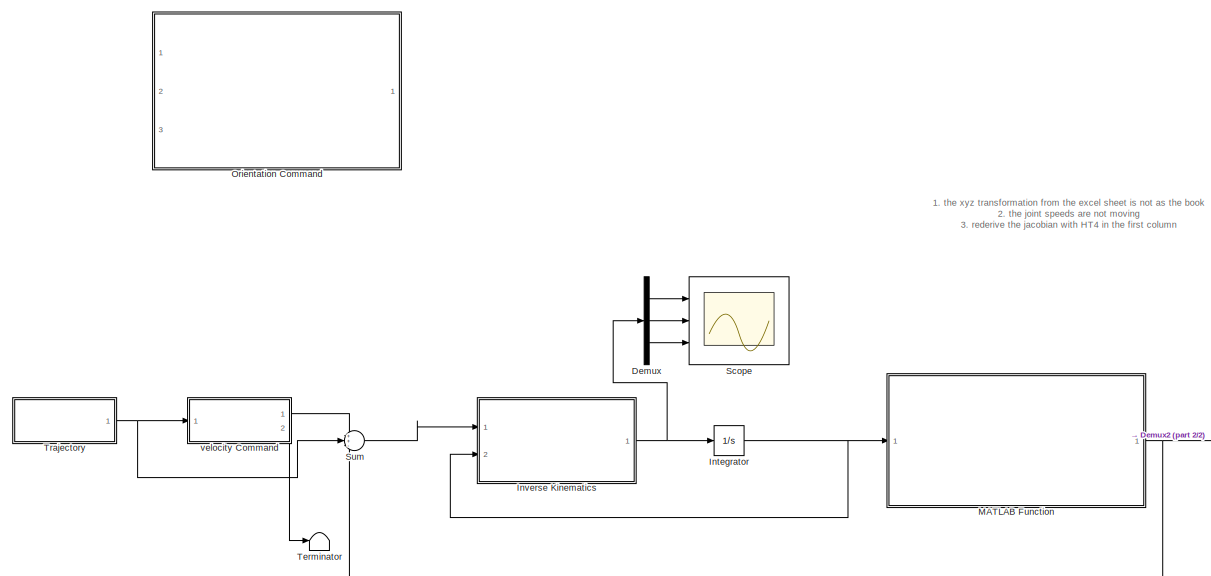
[diagram: root canvas - part 1/2, left side, full height]
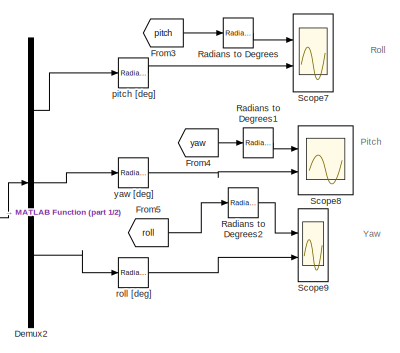
[diagram: root canvas - part 2/2, middle right region]
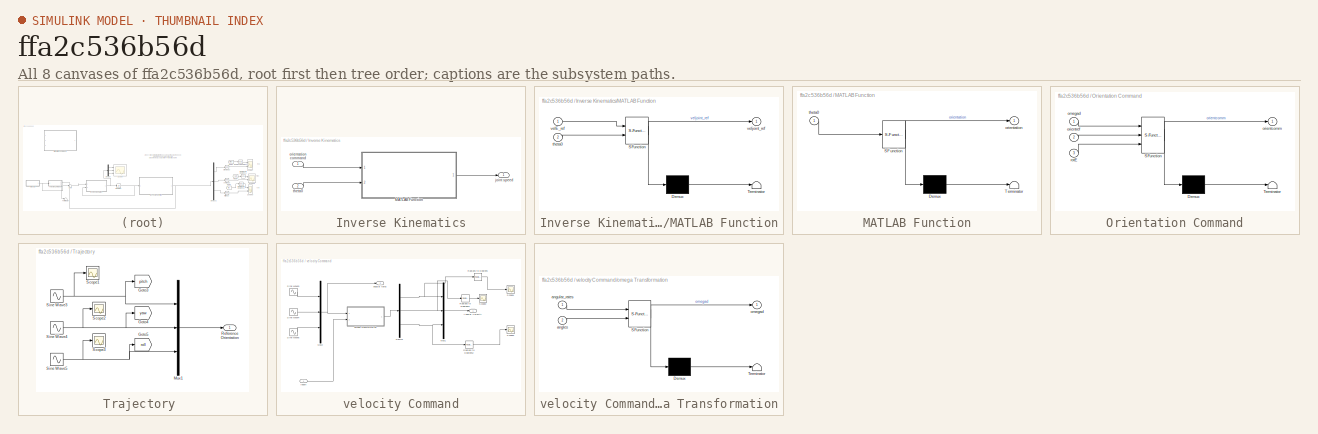
[diagram: thumbnail index - all 8 canvases of the model, root first then tree order]
MODEL slx_ffa2c536b56d
KIND model
CONFIG AbsTol = auto
CONFIG EnableMultiTasking = off
CONFIG FixedStep = auto
CONFIG MaxStep = auto
CONFIG MinStep = auto
CONFIG RelTol = 1e-3
CONFIG SampleTimeConstraint = Unconstrained
CONFIG Solver = VariableStepAuto
CONFIG SolverName = VariableStepAuto
CONFIG StartTime = 0.0
CONFIG StopTime = 10.0
BLOCK [Demux] Demux
  DisplayOption = bar
  Outputs = 3
  Ports = [1, 3]
BLOCK [Demux] Demux2
  DisplayOption = bar
  Outputs = 3
  Ports = [1, 3]
BLOCK [From] From3
  GotoTag = pitch
  TagVisibility = global
BLOCK [From] From4
  GotoTag = yaw
  TagVisibility = global
BLOCK [From] From5
  GotoTag = roll
  TagVisibility = global
BLOCK [Integrator] Integrator
  InitialCondition = [20 20 20]*pi/180
  Ports = [1, 1]
BLOCK [SubSystem] Inverse Kinematics
  Ports = [2, 1]
  RequestExecContextInheritance = off
BLOCK [SubSystem] Inverse Kinematics/MATLAB Function
  ErrorFcn = Stateflow.Translate.translate
  PermitHierarchicalResolution = ExplicitOnly
  Ports = [2, 1]
  RequestExecContextInheritance = off
  SFBlockType = MATLAB Function
  TreatAsAtomicUnit = on
BLOCK [Demux] Inverse Kinematics/MATLAB Function/ Demux 
  Outputs = 1
  Ports = [1, 1]
BLOCK [S-Function] Inverse Kinematics/MATLAB Function/ SFunction 
  EnableBusSupport = on
  FunctionName = sf_sfun
  PortCounts = [2 2]
  Ports = [2, 2]
  SFcnIsStateOwnerBlock = off
  SFunctionDeploymentMode = off
  Tag = Stateflow S-Function 2
BLOCK [Terminator] Inverse Kinematics/MATLAB Function/ Terminator 
BLOCK [Inport] Inverse Kinematics/MATLAB Function/theta0
  IconDisplay = Port number
  Port = 2
BLOCK [Inport] Inverse Kinematics/MATLAB Function/velE_ref
  IconDisplay = Port number
BLOCK [Outport] Inverse Kinematics/MATLAB Function/veljoint_ref
  IconDisplay = Port number
  VectorParamsAs1DForOutWhenUnconnected = off
BLOCK [Outport] Inverse Kinematics/joint speed
  IconDisplay = Port number
  VectorParamsAs1DForOutWhenUnconnected = off
BLOCK [Inport] Inverse Kinematics/orientation command
  IconDisplay = Port number
BLOCK [Inport] Inverse Kinematics/theta0
  IconDisplay = Port number
  Port = 2
BLOCK [SubSystem] MATLAB Function
  ErrorFcn = Stateflow.Translate.translate
  PermitHierarchicalResolution = ExplicitOnly
  Ports = [1, 1]
  RequestExecContextInheritance = off
  SFBlockType = MATLAB Function
  TreatAsAtomicUnit = on
BLOCK [Demux] MATLAB Function/ Demux 
  Outputs = 1
  Ports = [1, 1]
BLOCK [S-Function] MATLAB Function/ SFunction 
  EnableBusSupport = on
  FunctionName = sf_sfun
  PortCounts = [1 2]
  Ports = [1, 2]
  SFcnIsStateOwnerBlock = off
  SFunctionDeploymentMode = off
  Tag = Stateflow S-Function 1
BLOCK [Terminator] MATLAB Function/ Terminator 
BLOCK [Outport] MATLAB Function/orientation
  IconDisplay = Port number
BLOCK [Inport] MATLAB Function/theta0
  IconDisplay = Port number
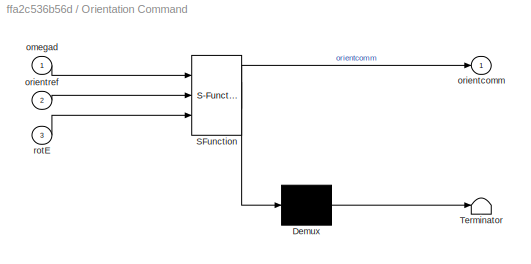
BLOCK [SubSystem] Orientation Command
  Commented = on
  ErrorFcn = Stateflow.Translate.translate
  PermitHierarchicalResolution = ExplicitOnly
  Ports = [3, 1]
  RequestExecContextInheritance = off
  SFBlockType = MATLAB Function
  TreatAsAtomicUnit = on
BLOCK [Demux] Orientation Command/ Demux 
  Outputs = 1
  Ports = [1, 1]
BLOCK [S-Function] Orientation Command/ SFunction 
  EnableBusSupport = on
  FunctionName = sf_sfun
  PortCounts = [3 2]
  Ports = [3, 2]
  SFcnIsStateOwnerBlock = off
  SFunctionDeploymentMode = off
  Tag = Stateflow S-Function 3
BLOCK [Terminator] Orientation Command/ Terminator 
BLOCK [Inport] Orientation Command/omegad
  IconDisplay = Port number
BLOCK [Outport] Orientation Command/orientcomm
  IconDisplay = Port number
BLOCK [Inport] Orientation Command/orientref
  IconDisplay = Port number
  Port = 2
BLOCK [Inport] Orientation Command/rotE
  IconDisplay = Port number
  Port = 3
BLOCK [Reference] Radians to Degrees  REF=simulink_extras/Transformations/Radians
to Degrees
  Ports = [1, 1]
  SourceBlock = simulink_extras/Transformations/Radians\nto Degrees
  SourceProductBaseCode = SL
  SourceProductName = Simulink
  SourceType = RadiansToDegrees
BLOCK [Reference] Radians to Degrees1  REF=simulink_extras/Transformations/Radians
to Degrees
  Ports = [1, 1]
  SourceBlock = simulink_extras/Transformations/Radians\nto Degrees
  SourceProductBaseCode = SL
  SourceProductName = Simulink
  SourceType = RadiansToDegrees
BLOCK [Reference] Radians to Degrees2  REF=simulink_extras/Transformations/Radians
to Degrees
  Ports = [1, 1]
  SourceBlock = simulink_extras/Transformations/Radians\nto Degrees
  SourceProductBaseCode = SL
  SourceProductName = Simulink
  SourceType = RadiansToDegrees
BLOCK [Scope] Scope
  Floating = off
  NumInputPorts = 3
  Ports = [3]
  ScopeSpecificationString = Simulink.scopes.TimeScopeBlockCfg('CurrentConfiguration', extmgr.ConfigurationSet(extmgr.Configuration('Core','General UI',true),extmgr.Configuration('Core','Source UI',true),extmgr.Configuration('Sources','WiredSimulink',true,'DataLoggingVariableName','ScopeData9'),extmgr.Configuration('Visuals','Time Domain',true,'SerializedDisplays',{struct('MinYLimReal','-9634.93138','MaxYLimReal','12496.24103...<+1456ch>
BLOCK [Scope] Scope7
  Floating = off
  NumInputPorts = 2
  Ports = [2]
  ScopeSpecificationString = Simulink.scopes.TimeScopeBlockCfg('CurrentConfiguration', extmgr.ConfigurationSet(extmgr.Configuration('Core','General UI',true),extmgr.Configuration('Core','Source UI',true),extmgr.Configuration('Sources','WiredSimulink',true,'DataLoggingVariableName','ScopeData6'),extmgr.Configuration('Visuals','Time Domain',true,'SerializedDisplays',{struct('MinYLimReal','-215.92752','MaxYLimReal','210.72616','...<+1446ch>
BLOCK [Scope] Scope8
  Floating = off
  NumInputPorts = 2
  Ports = [2]
  ScopeSpecificationString = Simulink.scopes.TimeScopeBlockCfg('CurrentConfiguration', extmgr.ConfigurationSet(extmgr.Configuration('Core','General UI',true),extmgr.Configuration('Core','Source UI',true),extmgr.Configuration('Sources','WiredSimulink',true,'DataLoggingVariableName','ScopeData7'),extmgr.Configuration('Visuals','Time Domain',true,'SerializedDisplays',{struct('MinYLimReal','29.35582','MaxYLimReal','85.79763','YLa...<+1438ch>
BLOCK [Scope] Scope9
  Floating = off
  NumInputPorts = 2
  Ports = [2]
  ScopeSpecificationString = Simulink.scopes.TimeScopeBlockCfg('CurrentConfiguration', extmgr.ConfigurationSet(extmgr.Configuration('Core','General UI',true),extmgr.Configuration('Core','Source UI',true),extmgr.Configuration('Sources','WiredSimulink',true,'DataLoggingVariableName','ScopeData8'),extmgr.Configuration('Visuals','Time Domain',true,'SerializedDisplays',{struct('MinYLimReal','28.34422','MaxYLimReal','94.90199','YLa...<+1470ch>
BLOCK [Sum] Sum
  IconShape = round
  InputSameDT = off
  Inputs = ++-
  OutDataTypeStr = Inherit: Inherit via internal rule
  Ports = [3, 1]
  SaturateOnIntegerOverflow = off
BLOCK [Terminator] Terminator
BLOCK [SubSystem] Trajectory 
  Ports = [0, 1]
  RequestExecContextInheritance = off
BLOCK [Goto] Trajectory /Goto3
  GotoTag = pitch
  TagVisibility = global
BLOCK [Goto] Trajectory /Goto4
  GotoTag = yaw
  TagVisibility = global
BLOCK [Goto] Trajectory /Goto5
  GotoTag = roll
  TagVisibility = global
BLOCK [Mux] Trajectory /Mux1
  DisplayOption = bar
  Inputs = 3
  Ports = [3, 1]
BLOCK [Outport] Trajectory /Reference Orientation
  IconDisplay = Port number
BLOCK [Scope] Trajectory /Scope1
  Floating = off
  NumInputPorts = 1
  Ports = [1]
  ScopeSpecificationString = Simulink.scopes.TimeScopeBlockCfg('CurrentConfiguration', extmgr.ConfigurationSet(extmgr.Configuration('Core','General UI',true),extmgr.Configuration('Core','Source UI',true),extmgr.Configuration('Sources','WiredSimulink',true,'DataLoggingVariableName','ScopeData4'),extmgr.Configuration('Visuals','Time Domain',true,'SerializedDisplays',{struct('MinYLimReal','0.59996','MaxYLimReal','0.70904','YLabe...<+1419ch>
BLOCK [Scope] Trajectory /Scope2
  Floating = off
  NumInputPorts = 1
  Ports = [1]
  ScopeSpecificationString = Simulink.scopes.TimeScopeBlockCfg('CurrentConfiguration', extmgr.ConfigurationSet(extmgr.Configuration('Core','General UI',true),extmgr.Configuration('Core','Source UI',true),extmgr.Configuration('Sources','WiredSimulink',true,'DataLoggingVariableName','ScopeData1'),extmgr.Configuration('Visuals','Time Domain',true,'SerializedDisplays',{struct('MinYLimReal','-1.23169','MaxYLimReal','-1.12366','YLa...<+1423ch>
BLOCK [Scope] Trajectory /Scope3
  Floating = off
  NumInputPorts = 1
  Ports = [1]
  ScopeSpecificationString = Simulink.scopes.TimeScopeBlockCfg('CurrentConfiguration', extmgr.ConfigurationSet(extmgr.Configuration('Core','General UI',true),extmgr.Configuration('Core','Source UI',true),extmgr.Configuration('Sources','WiredSimulink',true,'DataLoggingVariableName','ScopeData2'),extmgr.Configuration('Visuals','Time Domain',true,'SerializedDisplays',{struct('MinYLimReal','-1.63396','MaxYLimReal','-1.52593','YLa...<+1423ch>
BLOCK [Sin] Trajectory /Sine Wave3
  Amplitude = 5*pi/180
  Bias = 20*pi/180
  Frequency = 2*pi/100/4
  Ports = [0, 1]
  SampleTime = 0
BLOCK [Sin] Trajectory /Sine Wave4
  Amplitude = 5*pi/180
  Bias = 20*pi/180
  Frequency = 2*pi/100/4
  Ports = [0, 1]
  SampleTime = 0
BLOCK [Sin] Trajectory /Sine Wave5
  Amplitude = 5*pi/180
  Bias = 20*pi/180
  Frequency = 2*pi/100/4
  Ports = [0, 1]
  SampleTime = 0
BLOCK [Reference] pitch [deg]  REF=simulink_extras/Transformations/Radians
to Degrees
  Ports = [1, 1]
  SourceBlock = simulink_extras/Transformations/Radians\nto Degrees
  SourceProductBaseCode = SL
  SourceProductName = Simulink
  SourceType = RadiansToDegrees
BLOCK [Reference] roll [deg]  REF=simulink_extras/Transformations/Radians
to Degrees
  Ports = [1, 1]
  SourceBlock = simulink_extras/Transformations/Radians\nto Degrees
  SourceProductBaseCode = SL
  SourceProductName = Simulink
  SourceType = RadiansToDegrees
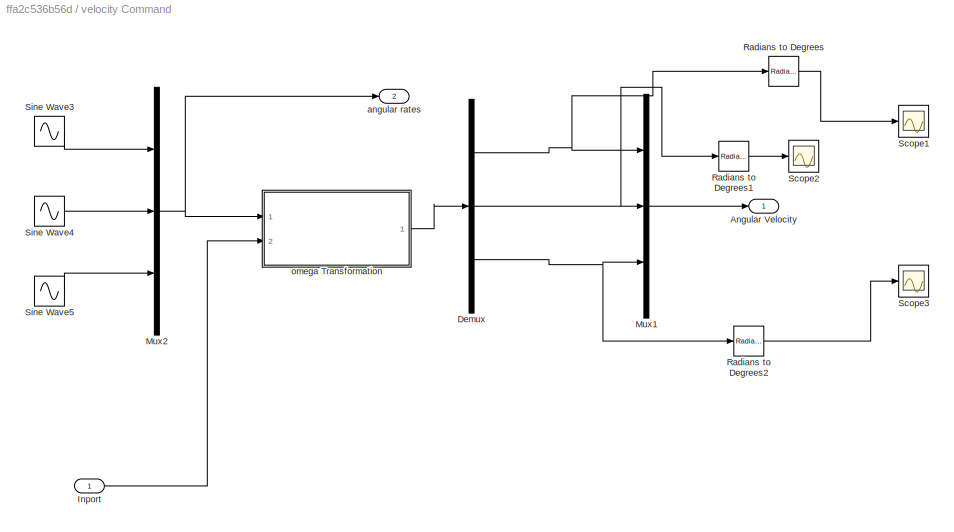
BLOCK [SubSystem] velocity Command
  Ports = [1, 2]
  RequestExecContextInheritance = off
BLOCK [Outport] velocity Command/Angular Velocity
  IconDisplay = Port number
BLOCK [Demux] velocity Command/Demux
  DisplayOption = bar
  Outputs = 3
  Ports = [1, 3]
BLOCK [Inport] velocity Command/Inport
  IconDisplay = Port number
BLOCK [Mux] velocity Command/Mux1
  DisplayOption = bar
  Inputs = 3
  Ports = [3, 1]
BLOCK [Mux] velocity Command/Mux2
  DisplayOption = bar
  Inputs = 3
  Ports = [3, 1]
BLOCK [Reference] velocity Command/Radians to Degrees  REF=simulink_extras/Transformations/Radians
to Degrees
  Ports = [1, 1]
  SourceBlock = simulink_extras/Transformations/Radians\nto Degrees
  SourceProductBaseCode = SL
  SourceProductName = Simulink
  SourceType = RadiansToDegrees
BLOCK [Reference] velocity Command/Radians to Degrees1  REF=simulink_extras/Transformations/Radians
to Degrees
  Ports = [1, 1]
  SourceBlock = simulink_extras/Transformations/Radians\nto Degrees
  SourceProductBaseCode = SL
  SourceProductName = Simulink
  SourceType = RadiansToDegrees
BLOCK [Reference] velocity Command/Radians to Degrees2  REF=simulink_extras/Transformations/Radians
to Degrees
  Ports = [1, 1]
  SourceBlock = simulink_extras/Transformations/Radians\nto Degrees
  SourceProductBaseCode = SL
  SourceProductName = Simulink
  SourceType = RadiansToDegrees
BLOCK [Scope] velocity Command/Scope1
  Floating = off
  NumInputPorts = 1
  Ports = [1]
  ScopeSpecificationString = Simulink.scopes.TimeScopeBlockCfg('CurrentConfiguration', extmgr.ConfigurationSet(extmgr.Configuration('Core','General UI',true),extmgr.Configuration('Core','Source UI',true),extmgr.Configuration('Sources','WiredSimulink',true,'DataLoggingVariableName','ScopeData1'),extmgr.Configuration('Visuals','Time Domain',true,'SerializedDisplays',{struct('MinYLimReal','-0.67472','MaxYLimReal','6.07252','YLab...<+1433ch>
BLOCK [Scope] velocity Command/Scope2
  Floating = off
  NumInputPorts = 1
  Ports = [1]
  ScopeSpecificationString = Simulink.scopes.TimeScopeBlockCfg('CurrentConfiguration', extmgr.ConfigurationSet(extmgr.Configuration('Core','General UI',true),extmgr.Configuration('Core','Source UI',true),extmgr.Configuration('Sources','WiredSimulink',true,'DataLoggingVariableName','ScopeData2'),extmgr.Configuration('Visuals','Time Domain',true,'SerializedDisplays',{struct('MinYLimReal','-0.56836','MaxYLimReal','5.11521','YLab...<+1434ch>
BLOCK [Scope] velocity Command/Scope3
  Floating = off
  NumInputPorts = 1
  Ports = [1]
  ScopeSpecificationString = Simulink.scopes.TimeScopeBlockCfg('CurrentConfiguration', extmgr.ConfigurationSet(extmgr.Configuration('Core','General UI',true),extmgr.Configuration('Core','Source UI',true),extmgr.Configuration('Sources','WiredSimulink',true,'DataLoggingVariableName','ScopeData3'),extmgr.Configuration('Visuals','Time Domain',true,'SerializedDisplays',{struct('MinYLimReal','-0.67947','MaxYLimReal','6.11525','YLab...<+1408ch>
BLOCK [Sin] velocity Command/Sine Wave3
  Amplitude = 5*pi/180
  Frequency = 2*pi/100/4
  Phase = pi/2
  Ports = [0, 1]
  SampleTime = 0
BLOCK [Sin] velocity Command/Sine Wave4
  Amplitude = 5*pi/180
  Frequency = 2*pi/100/4
  Phase = pi/2
  Ports = [0, 1]
  SampleTime = 0
BLOCK [Sin] velocity Command/Sine Wave5
  Amplitude = 5*pi/180
  Frequency = 2*pi/100/4
  Phase = pi/2
  Ports = [0, 1]
  SampleTime = 0
BLOCK [Outport] velocity Command/angular rates
  IconDisplay = Port number
  Port = 2
BLOCK [SubSystem] velocity Command/omega Transformation
  ErrorFcn = Stateflow.Translate.translate
  PermitHierarchicalResolution = ExplicitOnly
  Ports = [2, 1]
  RequestExecContextInheritance = off
  SFBlockType = MATLAB Function
  TreatAsAtomicUnit = on
BLOCK [Demux] velocity Command/omega Transformation/ Demux 
  Outputs = 1
  Ports = [1, 1]
BLOCK [S-Function] velocity Command/omega Transformation/ SFunction 
  EnableBusSupport = on
  FunctionName = sf_sfun
  PortCounts = [2 2]
  Ports = [2, 2]
  SFcnIsStateOwnerBlock = off
  SFunctionDeploymentMode = off
  Tag = Stateflow S-Function 6
BLOCK [Terminator] velocity Command/omega Transformation/ Terminator 
BLOCK [Inport] velocity Command/omega Transformation/angles
  IconDisplay = Port number
  Port = 2
BLOCK [Inport] velocity Command/omega Transformation/angular_rates
  IconDisplay = Port number
BLOCK [Outport] velocity Command/omega Transformation/omegad
  IconDisplay = Port number
BLOCK [Reference] yaw [deg]  REF=simulink_extras/Transformations/Radians
to Degrees
  Ports = [1, 1]
  SourceBlock = simulink_extras/Transformations/Radians\nto Degrees
  SourceProductBaseCode = SL
  SourceProductName = Simulink
  SourceType = RadiansToDegrees
ANNOTATION (root): 1. the xyz transformation from the excel sheet is not as the book 2. the joint speeds are not moving 3. rederive the jacobian with HT4 in the first column
ANNOTATION (root): Pitch
ANNOTATION (root): Roll
ANNOTATION (root): Yaw
LINE Demux2:1 -> pitch [deg]:1
LINE Demux2:2 -> yaw [deg]:1
LINE Demux2:3 -> roll [deg]:1
LINE Demux:1 -> Scope:1
LINE Demux:2 -> Scope:2
LINE Demux:3 -> Scope:3
LINE From3:1 -> Radians to Degrees:1
LINE From4:1 -> Radians to Degrees1:1
LINE From5:1 -> Radians to Degrees2:1
NET Integrator:1 -> Inverse Kinematics:2, MATLAB Function:1
LINE Inverse Kinematics/MATLAB Function:1 -> Inverse Kinematics/joint speed:1
LINE Inverse Kinematics/orientation command:1 -> Inverse Kinematics/MATLAB Function:1
LINE Inverse Kinematics/theta0:1 -> Inverse Kinematics/MATLAB Function:2
NET Inverse Kinematics:1 -> Demux:1, Integrator:1
NET MATLAB Function:1 -> Demux2:1, Sum:3
LINE Radians to Degrees1:1 -> Scope8:1
LINE Radians to Degrees2:1 -> Scope9:1
LINE Radians to Degrees:1 -> Scope7:1
LINE Sum:1 -> Inverse Kinematics:1
LINE Trajectory /Mux1:1 -> Trajectory /Reference Orientation:1
NET Trajectory /Sine Wave3:1 -> Trajectory /Goto3:1, Trajectory /Mux1:1, Trajectory /Scope1:1
NET Trajectory /Sine Wave4:1 -> Trajectory /Goto4:1, Trajectory /Mux1:2, Trajectory /Scope2:1
NET Trajectory /Sine Wave5:1 -> Trajectory /Goto5:1, Trajectory /Mux1:3, Trajectory /Scope3:1
NET Trajectory :1 -> Sum:2, velocity Command:1
LINE pitch [deg]:1 -> Scope7:2
LINE roll [deg]:1 -> Scope9:2
NET velocity Command/Demux:1 -> velocity Command/Mux1:1, velocity Command/Radians to Degrees:1
NET velocity Command/Demux:2 -> velocity Command/Mux1:2, velocity Command/Radians to Degrees1:1
NET velocity Command/Demux:3 -> velocity Command/Mux1:3, velocity Command/Radians to Degrees2:1
LINE velocity Command/Inport:1 -> velocity Command/omega Transformation:2
LINE velocity Command/Mux1:1 -> velocity Command/Angular Velocity:1
NET velocity Command/Mux2:1 -> velocity Command/angular rates:1, velocity Command/omega Transformation:1
LINE velocity Command/Radians to Degrees1:1 -> velocity Command/Scope2:1
LINE velocity Command/Radians to Degrees2:1 -> velocity Command/Scope3:1
LINE velocity Command/Radians to Degrees:1 -> velocity Command/Scope1:1
LINE velocity Command/Sine Wave3:1 -> velocity Command/Mux2:1
LINE velocity Command/Sine Wave4:1 -> velocity Command/Mux2:2
LINE velocity Command/Sine Wave5:1 -> velocity Command/Mux2:3
LINE velocity Command/omega Transformation:1 -> velocity Command/Demux:1
LINE velocity Command:1 -> Sum:1
LINE velocity Command:2 -> Terminator:1
LINE yaw [deg]:1 -> Scope8:2
note: NET lines group one-source signal fan-out (src -> all destinations, sorted); 1:1 wires keep LINE
CHART MATLAB Function states=1 transitions=1
  STATE_LABEL 'eML_blk_kernel()'
  STATE_LABEL 'SCRIPT:\n% function to calculate analytical Jacobian\nfunction orientation  = manipFK(theta0)\n%% Inputs\ntheta4 = theta0(1);\ntheta5 = theta0(2);\ntheta6 = theta0(3);\ncth4 = cos(theta4);\ncth5 = cos(theta5);\ncth6 = cos(theta6);\nsth4 = sin(theta4);\nsth5 = sin(theta5);\nsth6 = sin(theta6);\n%% Direct Forward Kinematics\nHT3 = [cth4*cth5*cth6 - sth4*sth6   -cth6*sth4 - cth4*cth5*sth6     cth4*sth5  ;\n    cth4...<+306ch>'
CHART Inverse Kinematics/MATLAB Function states=1 transitions=1
  STATE_LABEL 'eML_blk_kernel()'
  STATE_LABEL 'SCRIPT:\nfunction veljoint_ref = trajectoryIK(velE_ref,theta0)\ntheta4 = theta0(1);\ntheta5 = theta0(2);\ncth4 = cos(theta4);\ncth5 = cos(theta5);\nsth4 = sin(theta4);\nsth5 = sin(theta5);\n\nJ_rot = [0  -sth4   cth4*sth5;\n         0  cth4    sth4*sth5;\n         1   0      cth5];\n     \n     \n\n\n\nveljoint_ref = pinv(J_rot) * velE_ref;\n\n'
CHART Orientation Command states=1 transitions=1
  STATE_LABEL 'eML_blk_kernel()'
  STATE_LABEL 'SCRIPT:\nfunction orientcomm = orientCommand(omegad, orientref, rotE)\n\nphi = orientref(1);\nnu = orientref(2);\npsi = orientref(3);\n%ZYZ rotation\n% rotD = [cos(phi)*cos(nu)*cos(psi)-sin(phi)*sin(psi)    -cos(phi)*cos(nu)*sin(psi)-sin(phi)*cos(psi)   cos(phi)*sin(nu);\n%     sin(phi)*cos(nu)*cos(psi)+cos(phi)*sin(psi)    -sin(phi)*cos(nu)*sin(psi)+cos(phi)*cos(psi)   sin(phi)*sin(nu);\n%     -sin(nu)*co...<+1832ch>'
CHART velocity Command/omega Transformation states=1 transitions=1
  STATE_LABEL 'eML_blk_kernel()'
  STATE_LABEL 'SCRIPT:\n% ZYZ notation used here\n% Disambiguation: psi is also used for the GV heading\n\nfunction omegad = omegaTrans(angular_rates, angles)\nphi = angles(1);\nnu = angles(2);\npsi = angles(3);\n\n% nu = atan2(sqrt(HT3(1,3)^2+HT3(2,3)^2), HT3(3,3)); %theta5\n% phi = atan2(HT3(2,3), HT3(1,3));    %theta4\n% psi = atan2(HT3(3,2), -HT3(3,1));   %theta6\n\n% %ZYZ\n% T = [0 -sin(phi) cos(phi)*sin(nu);\n%      0  c...<+297ch>'
